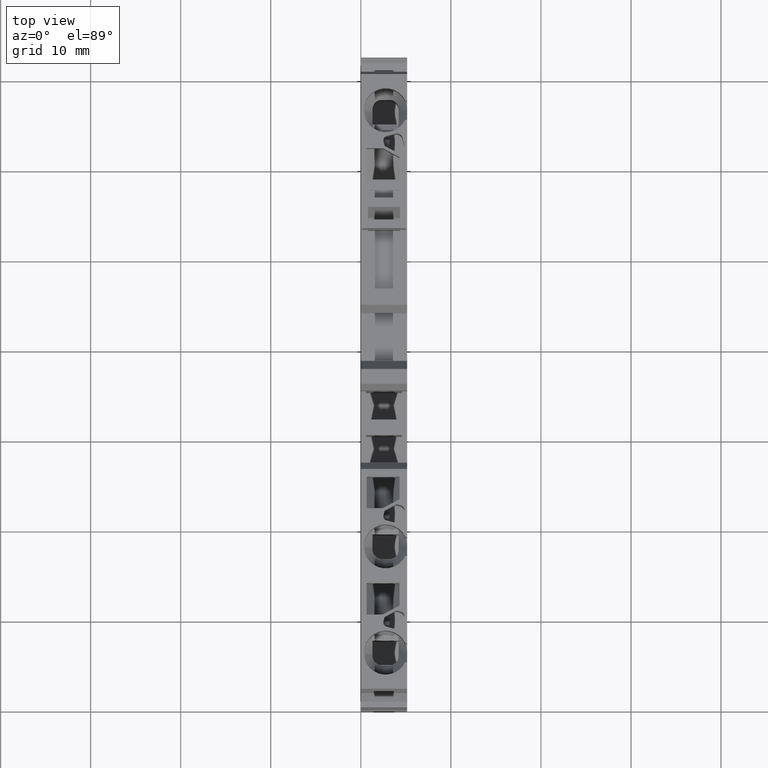
[diagram: clean part render]
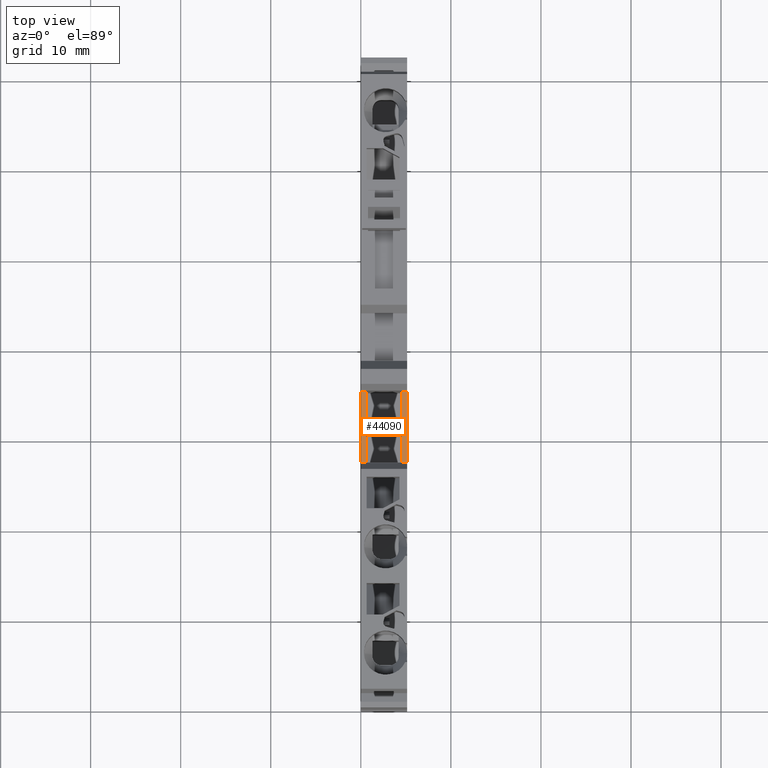
[diagram: same view with one face highlighted and labeled with its STEP entity id]
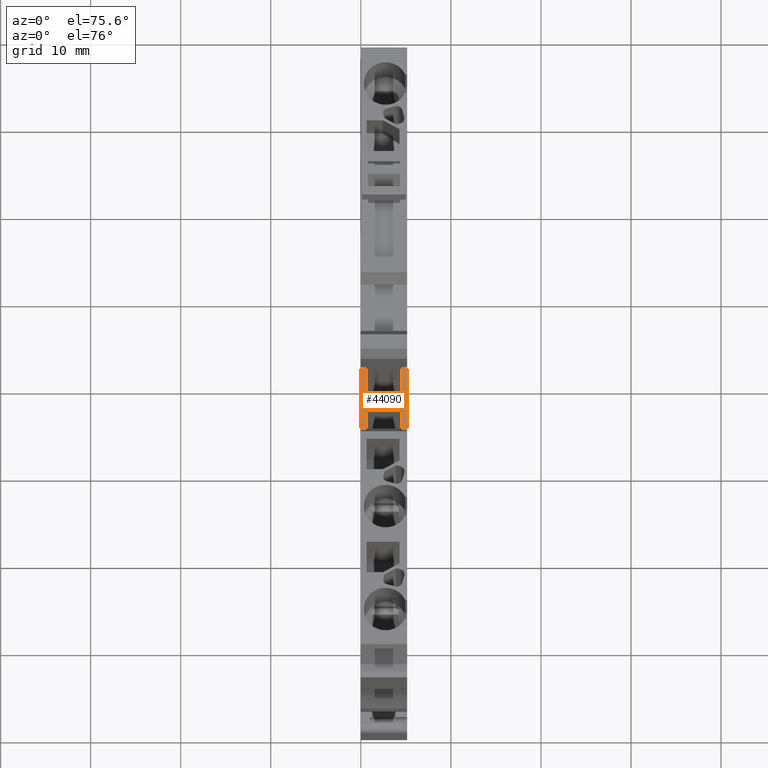
[diagram: same view with one face highlighted and labeled with its STEP entity id]
A machine part, top view. The second image highlights one B-rep face of the part: STEP entity #44090.
A second angle (auxiliary view) of the same face is appended — the face is thin or edge-on in the first view.
In plain terms, the highlighted planar face has unit normal (-0, -0, 1).
Its self-contained STEP definition (entity closure, byte-faithful):
#20490=CARTESIAN_POINT('',(4.73216722167553,-15.1500000000016,
53.6699999999923));
#20500=VERTEX_POINT('',#20490);
#20530=CARTESIAN_POINT('',(-31.4325633273473,-15.1500000000016,
53.6699999999942));
#20540=DIRECTION('',(1.,0.,0.));
#20550=VECTOR('',#20540,1.);
#20560=LINE('',#20530,#20550);
#20570=CARTESIAN_POINT('',(12.7321672216754,-15.1500000000016,
53.6699999999932));
#20580=VERTEX_POINT('',#20570);
#20590=EDGE_CURVE('',#20500,#20580,#20560,.T.);
#24700=CARTESIAN_POINT('',(12.7321672216753,-15.1500000000016,53.095));
#24710=VERTEX_POINT('',#24700);
#24790=CARTESIAN_POINT('',(12.7321672216753,-15.1500000000016,49.095));
#24800=VERTEX_POINT('',#24790);
#24830=CARTESIAN_POINT('',(12.7321672216753,-15.1500000000016,53.67));
#24840=DIRECTION('',(0.,0.,1.));
#24850=VECTOR('',#24840,1.);
#24860=LINE('',#24830,#24850);
#24870=CARTESIAN_POINT('',(12.7321672216754,-15.1500000000016,
48.5199999999973));
#24880=VERTEX_POINT('',#24870);
#24890=EDGE_CURVE('',#24880,#24800,#24860,.T.);
#25060=EDGE_CURVE('',#24710,#20580,#24860,.T.);
#31730=CARTESIAN_POINT('',(-31.4325633273473,-15.1500000000016,49.095));
#31740=DIRECTION('',(-1.,0.,0.));
#31750=VECTOR('',#31740,1.);
#31760=LINE('',#31730,#31750);
#31770=CARTESIAN_POINT('',(9.58216722165666,-15.1500000000016,49.095));
#31780=VERTEX_POINT('',#31770);
#31790=EDGE_CURVE('',#24800,#31780,#31760,.T.);
#34410=CARTESIAN_POINT('',(-31.4325633273473,-15.1500000000016,53.095));
#34420=DIRECTION('',(1.,0.,0.));
#34430=VECTOR('',#34420,1.);
#34440=LINE('',#34410,#34430);
#34450=CARTESIAN_POINT('',(9.58216722165665,-15.1500000000016,53.095));
#34460=VERTEX_POINT('',#34450);
#34470=EDGE_CURVE('',#34460,#24710,#34440,.T.);
#37990=CARTESIAN_POINT('',(9.58216722165666,-15.1500000000016,53.67));
#38000=DIRECTION('',(5.7748823432136E-46,-9.72346137165803E-63,1.));
#38010=VECTOR('',#38000,1.);
#38020=LINE('',#37990,#38010);
#38030=EDGE_CURVE('',#31780,#34460,#38020,.T.);
#43540=CARTESIAN_POINT('',(8.47748996123327,-15.1500000000016,
52.205766318032));
#43550=DIRECTION('',(0.,1.,-0.));
#43560=DIRECTION('',(-1.,0.,0.));
#43570=AXIS2_PLACEMENT_3D('',#43540,#43550,#43560);
#43580=PLANE('',#43570);
#43590=CARTESIAN_POINT('',(-31.4325633273473,-15.1500000000016,53.095));
#43600=DIRECTION('',(1.,0.,0.));
#43610=VECTOR('',#43600,1.);
#43620=LINE('',#43590,#43610);
#43630=CARTESIAN_POINT('',(4.73216722167549,-15.1500000000016,53.095));
#43640=VERTEX_POINT('',#43630);
#43650=CARTESIAN_POINT('',(7.88216722169498,-15.1500000000016,53.095));
#43660=VERTEX_POINT('',#43650);
#43670=EDGE_CURVE('',#43640,#43660,#43620,.T.);
#43680=ORIENTED_EDGE('',*,*,#43670,.F.);
#43690=CARTESIAN_POINT('',(7.88216722169498,-15.1500000000016,53.67));
#43700=DIRECTION('',(0.,0.,-1.));
#43710=VECTOR('',#43700,1.);
#43720=LINE('',#43690,#43710);
#43730=CARTESIAN_POINT('',(7.88216722169498,-15.1500000000016,49.095));
#43740=VERTEX_POINT('',#43730);
#43750=EDGE_CURVE('',#43660,#43740,#43720,.T.);
#43760=ORIENTED_EDGE('',*,*,#43750,.F.);
#43770=CARTESIAN_POINT('',(-31.4325633273473,-15.1500000000016,49.095));
#43780=DIRECTION('',(-1.,0.,0.));
#43790=VECTOR('',#43780,1.);
#43800=LINE('',#43770,#43790);
#43810=CARTESIAN_POINT('',(4.7321672216755,-15.1500000000016,49.095));
#43820=VERTEX_POINT('',#43810);
#43830=EDGE_CURVE('',#43740,#43820,#43800,.T.);
#43840=ORIENTED_EDGE('',*,*,#43830,.F.);
#43850=CARTESIAN_POINT('',(4.73216722167549,-15.1500000000016,53.67));
#43860=DIRECTION('',(0.,0.,1.));
#43870=VECTOR('',#43860,1.);
#43880=LINE('',#43850,#43870);
#43890=CARTESIAN_POINT('',(4.73216722167552,-15.1500000000016,
48.5199999999973));
#43900=VERTEX_POINT('',#43890);
#43910=EDGE_CURVE('',#43900,#43820,#43880,.T.);
#43920=ORIENTED_EDGE('',*,*,#43910,.T.);
#43930=CARTESIAN_POINT('',(-31.4325633273473,-15.1500000000016,
48.5199999999973));
#43940=DIRECTION('',(1.,0.,0.));
#43950=VECTOR('',#43940,1.);
#43960=LINE('',#43930,#43950);
#43970=EDGE_CURVE('',#43900,#24880,#43960,.T.);
#43980=ORIENTED_EDGE('',*,*,#43970,.F.);
#43990=ORIENTED_EDGE('',*,*,#24890,.F.);
#44000=ORIENTED_EDGE('',*,*,#31790,.F.);
#44010=ORIENTED_EDGE('',*,*,#38030,.F.);
#44020=ORIENTED_EDGE('',*,*,#34470,.F.);
#44030=ORIENTED_EDGE('',*,*,#25060,.F.);
#44040=ORIENTED_EDGE('',*,*,#20590,.T.);
#44050=EDGE_CURVE('',#43640,#20500,#43880,.T.);
#44060=ORIENTED_EDGE('',*,*,#44050,.T.);
#44070=EDGE_LOOP('',(#44060,#44040,#44030,#44020,#44010,#44000,#43990,
#43980,#43920,#43840,#43760,#43680));
#44080=FACE_OUTER_BOUND('',#44070,.T.);
#44090=ADVANCED_FACE('',(#44080),#43580,.T.);